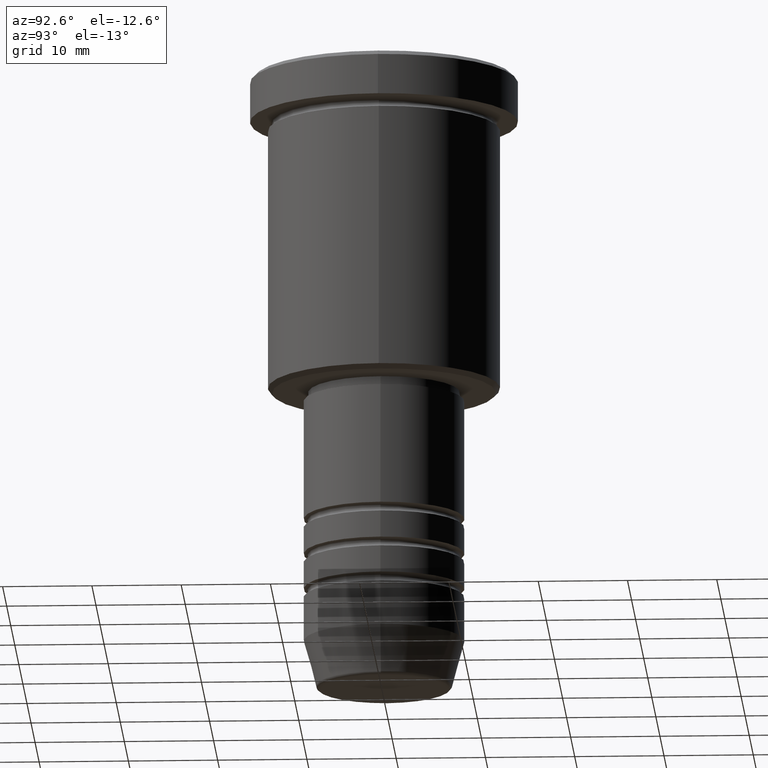
[diagram: clean part render]
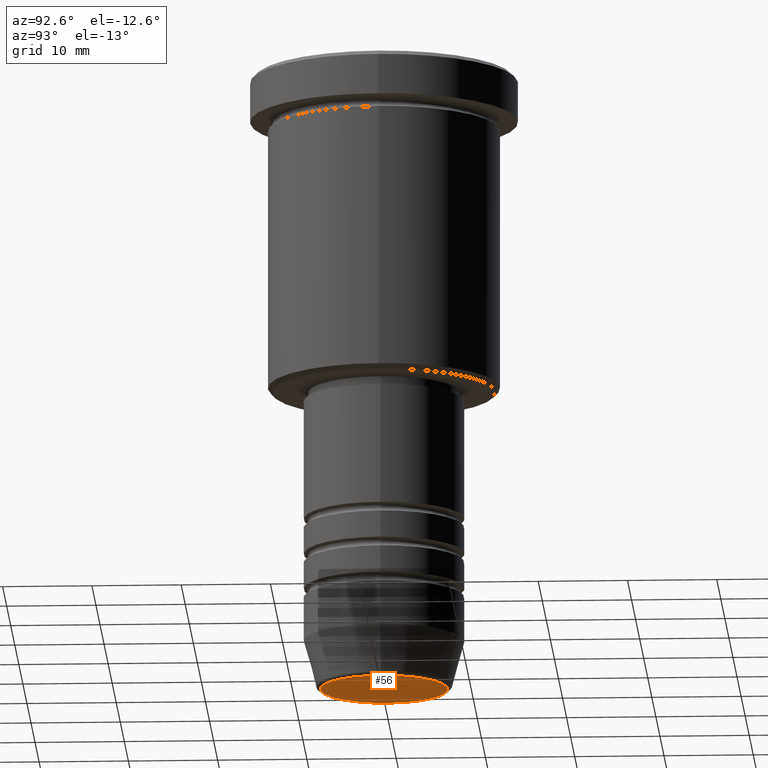
[diagram: same view with one face highlighted and labeled with its STEP entity id]
A machine part, auxiliary view. The second image highlights one B-rep face of the part: STEP entity #56.
In plain terms, the highlighted planar face has unit normal (0, -0, 1).
Its self-contained STEP definition (entity closure, byte-faithful):
#56 = ADVANCED_FACE ( 'NONE', ( #622 ), #699, .F. ) ;
#66 = AXIS2_PLACEMENT_3D ( 'NONE', #804, #718, #541 ) ;
#223 = VERTEX_POINT ( 'NONE', #997 ) ;
#234 = AXIS2_PLACEMENT_3D ( 'NONE', #1071, #985, #1084 ) ;
#392 = CIRCLE ( 'NONE', #993, 7.142615947639340490 ) ;
#416 = DIRECTION ( 'NONE',  ( 1.000000000000000000, 0.000000000000000000, 0.000000000000000000 ) ) ;
#450 = CARTESIAN_POINT ( 'NONE',  ( 7.142615947639340490, 0.000000000000000000, -70.00000000000000000 ) ) ;
#461 = EDGE_CURVE ( 'NONE', #576, #223, #392, .T. ) ;
#541 = DIRECTION ( 'NONE',  ( 1.000000000000000000, 0.000000000000000000, 0.000000000000000000 ) ) ;
#576 = VERTEX_POINT ( 'NONE', #450 ) ;
#597 = ORIENTED_EDGE ( 'NONE', *, *, #1113, .T. ) ;
#622 = FACE_OUTER_BOUND ( 'NONE', #1074, .T. ) ;
#645 = ORIENTED_EDGE ( 'NONE', *, *, #461, .T. ) ;
#664 = DIRECTION ( 'NONE',  ( 0.000000000000000000, 0.000000000000000000, -1.000000000000000000 ) ) ;
#681 = CARTESIAN_POINT ( 'NONE',  ( 0.000000000000000000, 0.000000000000000000, -70.00000000000000000 ) ) ;
#699 = PLANE ( 'NONE',  #234 ) ;
#718 = DIRECTION ( 'NONE',  ( 0.000000000000000000, 0.000000000000000000, -1.000000000000000000 ) ) ;
#804 = CARTESIAN_POINT ( 'NONE',  ( 0.000000000000000000, 0.000000000000000000, -70.00000000000000000 ) ) ;
#919 = CIRCLE ( 'NONE', #66, 7.142615947639340490 ) ;
#985 = DIRECTION ( 'NONE',  ( 0.000000000000000000, -0.000000000000000000, 1.000000000000000000 ) ) ;
#993 = AXIS2_PLACEMENT_3D ( 'NONE', #681, #664, #416 ) ;
#997 = CARTESIAN_POINT ( 'NONE',  ( -7.142615947639340490, 9.042911250660025544E-16, -70.00000000000000000 ) ) ;
#1071 = CARTESIAN_POINT ( 'NONE',  ( 0.000000000000000000, 0.000000000000000000, -70.00000000000000000 ) ) ;
#1074 = EDGE_LOOP ( 'NONE', ( #645, #597 ) ) ;
#1084 = DIRECTION ( 'NONE',  ( 1.000000000000000000, 0.000000000000000000, 0.000000000000000000 ) ) ;
#1113 = EDGE_CURVE ( 'NONE', #223, #576, #919, .T. ) ;